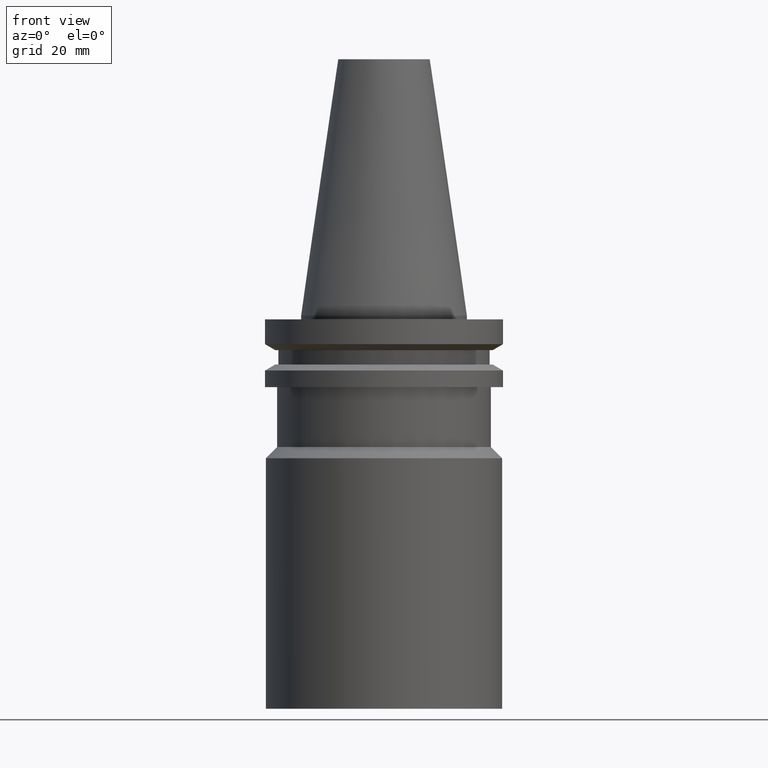
[diagram: clean part render]
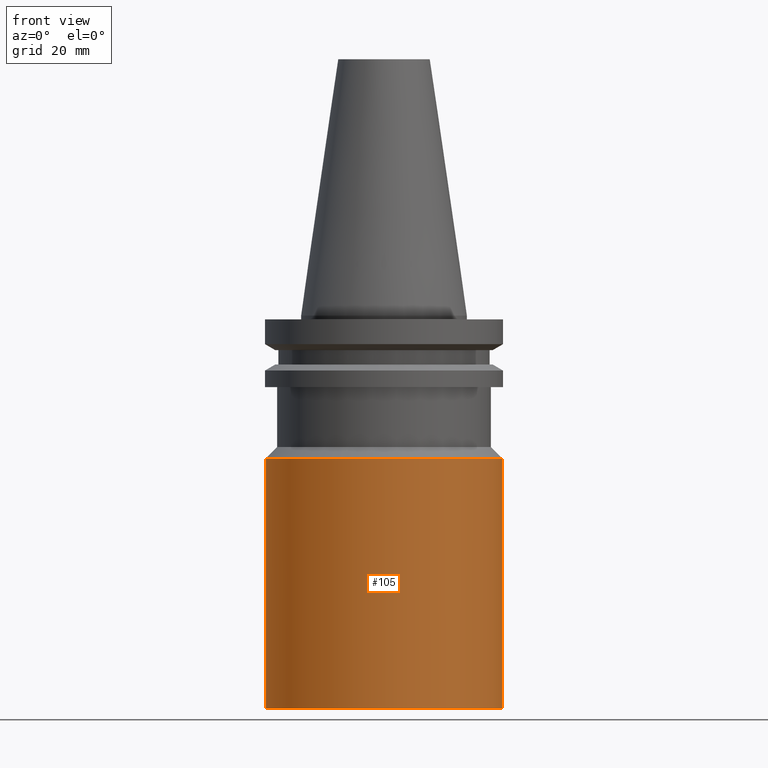
[diagram: same view with one face highlighted and labeled with its STEP entity id]
A machine part, front view. The second image highlights one B-rep face of the part: STEP entity #105.
In plain terms, the highlighted cylindrical surface (bore or boss wall) has radius 31.5 mm, axis along (0, -0, -1).
Its self-contained STEP definition (entity closure, byte-faithful):
#56=EDGE_CURVE('Unnamed[1]',#153,#153,#154,.T.);
#58=EDGE_CURVE('Unnamed[1]',#156,#156,#157,.T.);
#105=ADVANCED_FACE('Unnamed[1]',(#228,#229),#230,.T.);
#153=VERTEX_POINT('',#286);
#154=CIRCLE('',#287,31.4999999999999);
#156=VERTEX_POINT('',#290);
#157=CIRCLE('',#291,31.5000000000001);
#228=FACE_BOUND('',#379,.T.);
#229=FACE_BOUND('',#380,.T.);
#230=CYLINDRICAL_SURFACE('',#381,31.5);
#286=CARTESIAN_POINT('',(6.4110259935363E-015,31.4999999999999,-104.699999999999));
#287=AXIS2_PLACEMENT_3D('',#442,#443,#444);
#290=CARTESIAN_POINT('',(2.32682891837998E-015,31.5000000000001,-38.0000000000001));
#291=AXIS2_PLACEMENT_3D('',#445,#446,#447);
#379=EDGE_LOOP('',(#524));
#380=EDGE_LOOP('',(#525));
#381=AXIS2_PLACEMENT_3D('',#526,#527,#528);
#442=CARTESIAN_POINT('',(6.4110259935363E-015,-2.97759586601671E-014,-104.699999999998));
#443=DIRECTION('',(6.12323399573676E-017,-1.22421842920773E-016,-1.0));
#444=DIRECTION('',(2.66902317316447E-033,1.0,-1.22421842920773E-016));
#445=CARTESIAN_POINT('',(2.32682891837998E-015,-2.16104217373504E-014,-38.0000000000001));
#446=DIRECTION('',(6.12323399573677E-017,-1.22421842920772E-016,-1.0));
#447=DIRECTION('',(2.6690231731616E-033,1.0,-1.22421842920772E-016));
#524=ORIENTED_EDGE('',*,*,#56,.F.);
#525=ORIENTED_EDGE('',*,*,#58,.T.);
#526=CARTESIAN_POINT('',(4.36892745595814E-015,-2.56931901987588E-014,-71.3499999999993));
#527=DIRECTION('',(6.12323399573677E-017,-1.22421842920773E-016,-1.0));
#528=DIRECTION('',(2.66902317316161E-033,1.0,-1.22421842920773E-016));